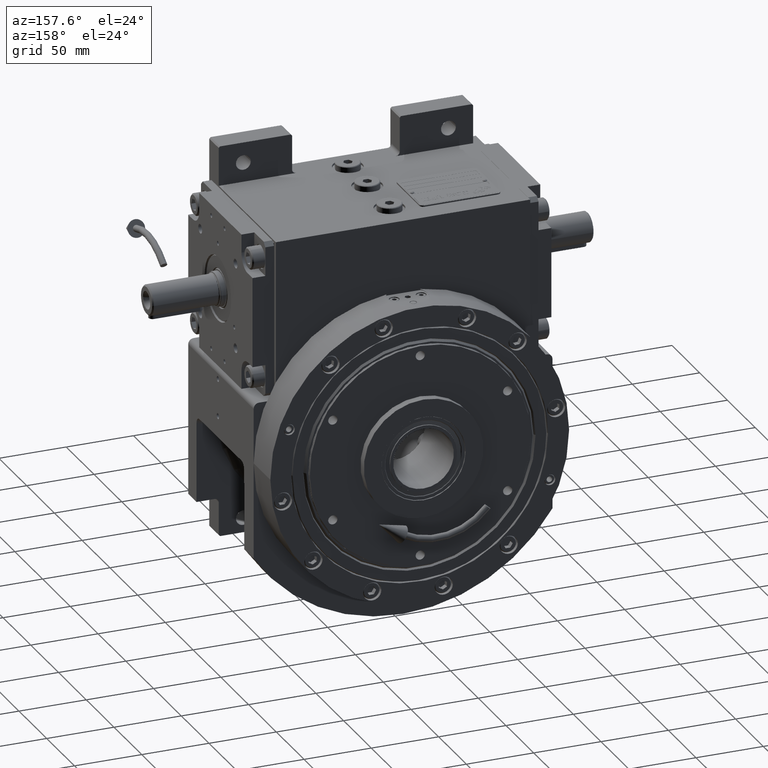
[diagram: clean part render]
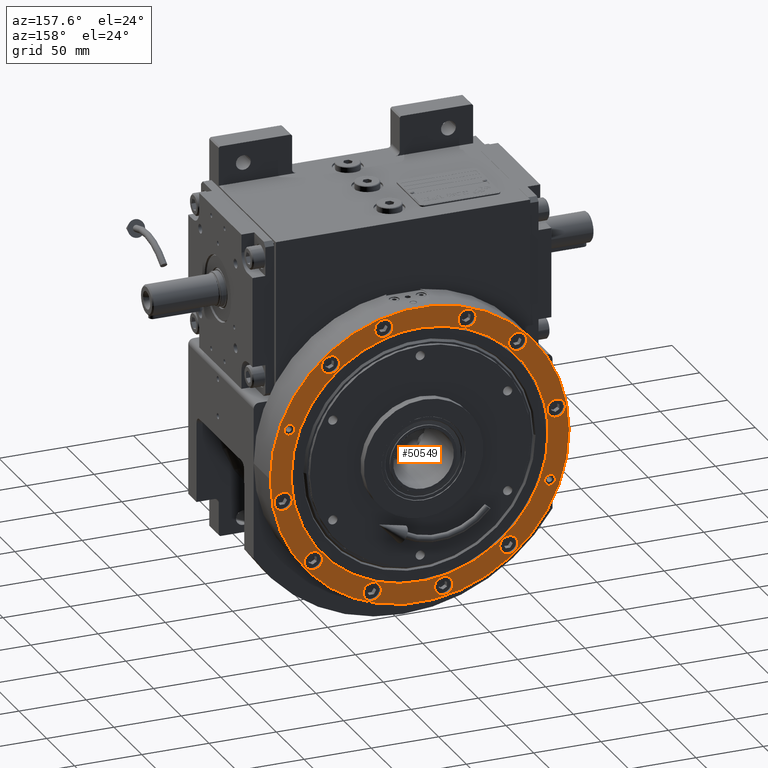
[diagram: same view with one face highlighted and labeled with its STEP entity id]
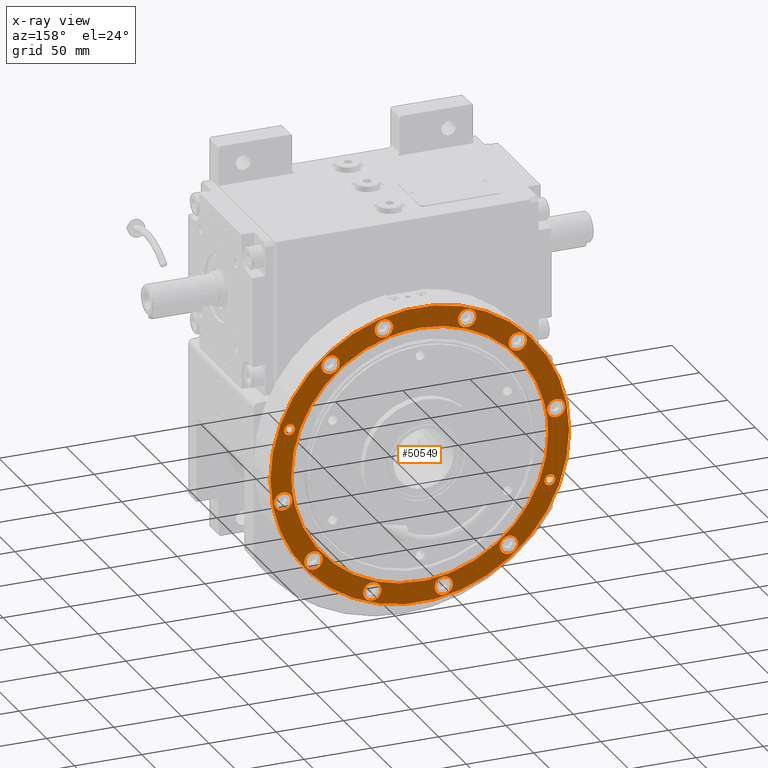
[diagram: x-ray of the same camera — body ghosted, the highlighted face saturated]
A machine part, auxiliary view. The second image highlights one B-rep face of the part: STEP entity #50549.
The next image is the same camera in x-ray: the body ghosted, the highlighted face saturated — about 0% of this face is hidden behind the body in this view.
In plain terms, the highlighted planar face has unit normal (0, 1, 0).
Its self-contained STEP definition (entity closure, byte-faithful):
#178 = EDGE_CURVE ( 'NONE', #9431, #59756, #22398, .T. ) ;
#201 = DIRECTION ( 'NONE',  ( 1.000000000000000000, 0.000000000000000000, 0.000000000000000000 ) ) ;
#262 = ORIENTED_EDGE ( 'NONE', *, *, #793, .F. ) ;
#317 = CARTESIAN_POINT ( 'NONE',  ( 95.36396765462740177, 1.146839460001253997E-07, 30.00000093867605244 ) ) ;
#321 = EDGE_LOOP ( 'NONE', ( #51018, #30616 ) ) ;
#424 = AXIS2_PLACEMENT_3D ( 'NONE', #23745, #13061, #19249 ) ;
#523 = CARTESIAN_POINT ( 'NONE',  ( 78.90257764125479412, 66.20712379771359224, 30.00000000000000000 ) ) ;
#676 = CARTESIAN_POINT ( 'NONE',  ( 95.36004226804972461, 6.278671310551059648, 30.00000000000000000 ) ) ;
#793 = EDGE_CURVE ( 'NONE', #51193, #62180, #22499, .T. ) ;
#809 = EDGE_CURVE ( 'NONE', #59756, #9431, #66163, .T. ) ;
#835 = CARTESIAN_POINT ( 'NONE',  ( 33.40836164555970100, -99.49036010777399497, 30.00000000000000000 ) ) ;
#974 = EDGE_LOOP ( 'NONE', ( #39127, #18151 ) ) ;
#1478 = CARTESIAN_POINT ( 'NONE',  ( 12.46351380911021245, -94.75307471979527918, 30.00000000000000711 ) ) ;
#1481 = CIRCLE ( 'NONE', #20075, 6.749999999999999112 ) ;
#2021 = DIRECTION ( 'NONE',  ( 1.000000000000000000, 0.000000000000000000, 0.000000000000000000 ) ) ;
#2455 = CARTESIAN_POINT ( 'NONE',  ( 101.4351985602574047, 17.88576229969384812, 30.00000000000000000 ) ) ;
#2712 = AXIS2_PLACEMENT_3D ( 'NONE', #18791, #48898, #2021 ) ;
#2722 = AXIS2_PLACEMENT_3D ( 'NONE', #26759, #16123, #57822 ) ;
#2850 = EDGE_CURVE ( 'NONE', #25640, #48352, #24155, .T. ) ;
#3007 = CARTESIAN_POINT ( 'NONE',  ( -111.0000000000000000, 4.531193156845210737E-15, 30.00000000000000000 ) ) ;
#3784 = EDGE_CURVE ( 'NONE', #5151, #26951, #48606, .T. ) ;
#4112 = CARTESIAN_POINT ( 'NONE',  ( -6.261284131796054808, 95.36384835916985026, 29.99999999999999645 ) ) ;
#4397 = EDGE_LOOP ( 'NONE', ( #21534, #49195 ) ) ;
#4659 = CARTESIAN_POINT ( 'NONE',  ( -95.36004226824213958, -6.278671002909074872, 29.99999999999999645 ) ) ;
#4897 = DIRECTION ( 'NONE',  ( 0.000000000000000000, 0.000000000000000000, 1.000000000000000000 ) ) ;
#5151 = VERTEX_POINT ( 'NONE', #17443 ) ;
#5294 = CARTESIAN_POINT ( 'NONE',  ( 0.000000000000000000, 0.000000000000000000, 30.00000000000000000 ) ) ;
#5339 = CARTESIAN_POINT ( 'NONE',  ( -63.00504900422143351, -71.86005655515261026, 29.99999999999999645 ) ) ;
#5593 = CARTESIAN_POINT ( 'NONE',  ( 93.82440576391282150, -17.06861220496205078, 29.99999999999999645 ) ) ;
#5671 = CARTESIAN_POINT ( 'NONE',  ( -30.70968628796335764, -90.50082709171405781, 30.00000000000000355 ) ) ;
#5727 = EDGE_LOOP ( 'NONE', ( #18558, #44884 ) ) ;
#5738 = DIRECTION ( 'NONE',  ( 0.000000000000000000, 0.000000000000000000, -1.000000000000000000 ) ) ;
#5764 = CARTESIAN_POINT ( 'NONE',  ( 94.74933634001871496, 12.47889566074964307, 30.00000000000000711 ) ) ;
#5905 = EDGE_CURVE ( 'NONE', #48352, #25640, #66081, .T. ) ;
#6164 = EDGE_CURVE ( 'NONE', #49685, #42422, #66185, .T. ) ;
#6266 = FACE_BOUND ( 'NONE', #53261, .T. ) ;
#6268 = CARTESIAN_POINT ( 'NONE',  ( 82.77081126671009770, -47.77538228772262840, 30.00000000000000355 ) ) ;
#6326 = CARTESIAN_POINT ( 'NONE',  ( -66.08199846221440055, -72.83199846221440055, 30.00000000000000000 ) ) ;
#6434 = CARTESIAN_POINT ( 'NONE',  ( 92.96503729129275939, 21.27949235716416965, 29.99999999999999289 ) ) ;
#7101 = EDGE_LOOP ( 'NONE', ( #67411, #16995 ) ) ;
#7261 = DIRECTION ( 'NONE',  ( 0.000000000000000000, 0.000000000000000000, 1.000000000000000000 ) ) ;
#7497 = EDGE_CURVE ( 'NONE', #65872, #11984, #17550, .T. ) ;
#7889 = VERTEX_POINT ( 'NONE', #50970 ) ;
#8026 = EDGE_CURVE ( 'NONE', #18952, #30155, #57531, .T. ) ;
#8191 = CIRCLE ( 'NONE', #43173, 6.749999999999999112 ) ;
#8649 = DIRECTION ( 'NONE',  ( 0.000000000000000000, 0.000000000000000000, 1.000000000000000000 ) ) ;
#8806 = AXIS2_PLACEMENT_3D ( 'NONE', #523, #58299, #12434 ) ;
#8883 = CARTESIAN_POINT ( 'NONE',  ( -63.00533367268138107, 71.85987798514420888, 30.00000000000000000 ) ) ;
#8895 = DIRECTION ( 'NONE',  ( 1.000000000000000000, 0.000000000000000000, 0.000000000000000000 ) ) ;
#9036 = DIRECTION ( 'NONE',  ( -1.000000000000000000, 0.000000000000000000, 0.000000000000000000 ) ) ;
#9388 = ORIENTED_EDGE ( 'NONE', *, *, #8026, .F. ) ;
#9431 = VERTEX_POINT ( 'NONE', #15263 ) ;
#9804 = EDGE_CURVE ( 'NONE', #54771, #11307, #1481, .T. ) ;
#10097 = DIRECTION ( 'NONE',  ( 1.000000000000000000, 0.000000000000000000, 0.000000000000000000 ) ) ;
#10399 = CARTESIAN_POINT ( 'NONE',  ( 94.03135700014991016, -15.91796824110771880, 30.00000000000000000 ) ) ;
#10486 = CARTESIAN_POINT ( 'NONE',  ( -4.229489444460266770E-10, -95.36392179383099688, 29.99999999999998579 ) ) ;
#10813 = CARTESIAN_POINT ( 'NONE',  ( -93.21483409806533871, -20.13354977035402271, 30.00000000000000000 ) ) ;
#10908 = CARTESIAN_POINT ( 'NONE',  ( 92.33404786841357748, 23.93848947927231663, 30.00000000000000711 ) ) ;
#10982 = CARTESIAN_POINT ( 'NONE',  ( -72.83199846221440055, -72.83199846221440055, 30.00000000000000000 ) ) ;
#11068 = CARTESIAN_POINT ( 'NONE',  ( 30.70942879387967750, -90.50100865208744949, 30.00000000000000711 ) ) ;
#11230 = CARTESIAN_POINT ( 'NONE',  ( 85.57274150929065115, 42.20782214628508200, 30.00000000000001066 ) ) ;
#11307 = VERTEX_POINT ( 'NONE', #835 ) ;
#11398 = CARTESIAN_POINT ( 'NONE',  ( 24.74579385898234207, -92.31004482326460447, 30.00000000000000000 ) ) ;
#11651 = DIRECTION ( 'NONE',  ( 1.000000000000000000, 0.000000000000000000, 0.000000000000000000 ) ) ;
#11984 = VERTEX_POINT ( 'NONE', #26302 ) ;
#12015 = VERTEX_POINT ( 'NONE', #31085 ) ;
#12043 = CARTESIAN_POINT ( 'NONE',  ( 78.90257764125479412, 66.20712379771359224, 30.00000000000000000 ) ) ;
#12063 = CARTESIAN_POINT ( 'NONE',  ( 58.18781398852603814, -75.81346993082416930, 30.00000000000000000 ) ) ;
#12248 = DIRECTION ( 'NONE',  ( -1.000000000000000000, 0.000000000000000000, 0.000000000000000000 ) ) ;
#12434 = DIRECTION ( 'NONE',  ( 1.000000000000000000, 0.000000000000000000, 0.000000000000000000 ) ) ;
#12685 = CARTESIAN_POINT ( 'NONE',  ( 26.65836164555969745, -99.49036010777399497, 30.00000000000000000 ) ) ;
#12903 = CARTESIAN_POINT ( 'NONE',  ( 72.15257764125480833, 66.20712379771359224, 30.00000000000000000 ) ) ;
#12924 = DIRECTION ( 'NONE',  ( -1.000000000000000000, 0.000000000000000000, 0.000000000000000000 ) ) ;
#13013 = DIRECTION ( 'NONE',  ( 0.000000000000000000, 0.000000000000000000, 1.000000000000000000 ) ) ;
#13041 = EDGE_LOOP ( 'NONE', ( #36618, #67493 ) ) ;
#13061 = DIRECTION ( 'NONE',  ( 0.000000000000000000, 0.000000000000000000, 1.000000000000000000 ) ) ;
#13401 = AXIS2_PLACEMENT_3D ( 'NONE', #22575, #64255, #12924 ) ;
#13484 = CARTESIAN_POINT ( 'NONE',  ( 35.22807476254389769, 96.78833994094861737, 30.00000000000000000 ) ) ;
#13644 = EDGE_LOOP ( 'NONE', ( #22018, #57577, #62369 ) ) ;
#13720 = CARTESIAN_POINT ( 'NONE',  ( -24.63576229969385167, 101.4351985602574047, 30.00000000000000000 ) ) ;
#13817 = CARTESIAN_POINT ( 'NONE',  ( -59.45712379771349987, 78.90257764125469464, 30.00000000000000000 ) ) ;
#14037 = CARTESIAN_POINT ( 'NONE',  ( -71.85999357129684029, 63.00467825743183425, 30.00000000000000711 ) ) ;
#14170 = DIRECTION ( 'NONE',  ( -1.000000000000000000, 0.000000000000000000, 0.000000000000000000 ) ) ;
#14302 = EDGE_CURVE ( 'NONE', #26951, #5151, #35715, .T. ) ;
#14370 = CARTESIAN_POINT ( 'NONE',  ( 58.18774278256792343, 75.81359446972774663, 30.00000000000000000 ) ) ;
#14548 = CARTESIAN_POINT ( 'NONE',  ( -108.1851985602573905, -17.88576229969384812, 30.00000000000000000 ) ) ;
#14668 = CARTESIAN_POINT ( 'NONE',  ( -96.78833994094861737, 35.22807476254389769, 30.00000000000000000 ) ) ;
#14877 = FACE_BOUND ( 'NONE', #47481, .T. ) ;
#14959 = CARTESIAN_POINT ( 'NONE',  ( -86.90708454479874945, -39.38558881133341316, 30.00000000000000000 ) ) ;
#15092 = CIRCLE ( 'NONE', #45718, 6.749999999999999112 ) ;
#15170 = DIRECTION ( 'NONE',  ( 1.000000000000000000, 0.000000000000000000, 0.000000000000000000 ) ) ;
#15263 = CARTESIAN_POINT ( 'NONE',  ( -28.47807476254395098, -96.78833994094861737, 30.00000000000000000 ) ) ;
#15286 = CARTESIAN_POINT ( 'NONE',  ( -85.57274245185685402, -42.20782022335594519, 30.00000000000000355 ) ) ;
#15351 = AXIS2_PLACEMENT_3D ( 'NONE', #10982, #48257, #11651 ) ;
#15383 = CARTESIAN_POINT ( 'NONE',  ( -94.03135713042799182, 15.91796746885852265, 30.00000000000000355 ) ) ;
#15537 = CARTESIAN_POINT ( 'NONE',  ( 94.46446488700054545, -13.22672580336032766, 30.00000000000000000 ) ) ;
#15595 = CARTESIAN_POINT ( 'NONE',  ( -17.88576229969384812, 101.4351985602574047, 30.00000000000000000 ) ) ;
#15621 = CARTESIAN_POINT ( 'NONE',  ( -75.81440830140243747, -58.18610632982992570, 30.00000000000000355 ) ) ;
#15709 = CIRCLE ( 'NONE', #424, 6.750000000000006217 ) ;
#15726 = CARTESIAN_POINT ( 'NONE',  ( 93.37678107592141430, 19.36817380080752926, 30.00000000000000000 ) ) ;
#15858 = AXIS2_PLACEMENT_3D ( 'NONE', #12043, #48677, #54468 ) ;
#15894 = CARTESIAN_POINT ( 'NONE',  ( 92.30979554816967436, -24.74573984201948207, 30.00000000000000355 ) ) ;
#15967 = CIRCLE ( 'NONE', #40041, 6.750000000000006217 ) ;
#15974 = CARTESIAN_POINT ( 'NONE',  ( -92.33404816371216839, -23.93848833026562062, 30.00000000000000355 ) ) ;
#16123 = DIRECTION ( 'NONE',  ( 0.000000000000000000, 0.000000000000000000, 1.000000000000000000 ) ) ;
#16300 = CARTESIAN_POINT ( 'NONE',  ( -89.30279205802959552, -33.60238237805035055, 29.99999999999999289 ) ) ;
#16556 = CARTESIAN_POINT ( 'NONE',  ( 90.50165223639055512, -30.70816640261620734, 30.00000000000000355 ) ) ;
#16726 = CARTESIAN_POINT ( 'NONE',  ( 90.87954623065817827, 29.19701717010804387, 30.00000000000000711 ) ) ;
#16995 = ORIENTED_EDGE ( 'NONE', *, *, #35329, .F. ) ;
#17269 = ORIENTED_EDGE ( 'NONE', *, *, #178, .F. ) ;
#17324 = B_SPLINE_CURVE_WITH_KNOTS ( 'NONE', 3,
 ( #20550, #24701, #62242, #30180, #15383, #35269, #36280, #57099, #24338, #46180, #50977, #45170, #60900, #14037, #8883, #55759, #51302, #67036, #29830, #50631, #45521, #4112, #35622, #66366, #61570, #19520, #56443, #61230, #14370, #58451, #57775, #53314, #42730, #37613, #11230, #51982, #36626, #16726, #10908, #6434, #63565, #15726, #21887, #5764, #676, #317 ),
 .UNSPECIFIED., .F., .F.,
 ( 4, 1, 1, 1, 2, 2, 2, 2, 2, 2, 2, 2, 2, 2, 2, 2, 2, 2, 2, 2, 1, 1, 1, 2, 2, 4 ),
 ( 0.000000000000000000, 0.03124999999999973632, 0.04687499999999959061, 0.05468749999999950734, 0.05859374999999949346, 0.06249999999999947264, 0.1249999999999995282, 0.1874999999999995282, 0.2499999999999995559, 0.3124999999999995559, 0.3749999999999996114, 0.4374999999999996114, 0.4999999999999996669, 0.5624999999999996669, 0.6249999999999996669, 0.6874999999999997780, 0.7499999999999997780, 0.8124999999999997780, 0.8437499999999997780, 0.8749999999999996669, 0.9062499999999996669, 0.9218749999999996669, 0.9296874999999996669, 0.9335937499999996669, 0.9374999999999996669, 1.000000000000000000 ),
 .UNSPECIFIED. ) ;
#17443 = CARTESIAN_POINT ( 'NONE',  ( -94.68519856025739045, -17.88576229969384812, 30.00000000000000000 ) ) ;
#17550 = CIRCLE ( 'NONE', #15351, 6.750000000000006217 ) ;
#18151 = ORIENTED_EDGE ( 'NONE', *, *, #14302, .F. ) ;
#18558 = ORIENTED_EDGE ( 'NONE', *, *, #20676, .F. ) ;
#18783 = EDGE_CURVE ( 'NONE', #12015, #20238, #52274, .T. ) ;
#18791 = CARTESIAN_POINT ( 'NONE',  ( -101.4351985602574047, -17.88576229969384812, 30.00000000000000000 ) ) ;
#18952 = VERTEX_POINT ( 'NONE', #40124 ) ;
#19249 = DIRECTION ( 'NONE',  ( -1.000000000000000000, 0.000000000000000000, 0.000000000000000000 ) ) ;
#19520 = CARTESIAN_POINT ( 'NONE',  ( 30.70968072591939446, 90.50082900647421980, 30.00000000000000000 ) ) ;
#19821 = DIRECTION ( 'NONE',  ( 0.000000000000000000, 0.000000000000000000, -1.000000000000000000 ) ) ;
#19903 = CIRCLE ( 'NONE', #22106, 6.750000000000002665 ) ;
#20075 = AXIS2_PLACEMENT_3D ( 'NONE', #37029, #37359, #57848 ) ;
#20127 = EDGE_LOOP ( 'NONE', ( #31849, #29992 ) ) ;
#20238 = VERTEX_POINT ( 'NONE', #24430 ) ;
#20318 = EDGE_LOOP ( 'NONE', ( #54537, #9388 ) ) ;
#20550 = CARTESIAN_POINT ( 'NONE',  ( -95.36396765462809810, -1.146839552493053995E-07, 30.00000093867580375 ) ) ;
#20676 = EDGE_CURVE ( 'NONE', #11307, #54771, #19903, .T. ) ;
#20701 = CARTESIAN_POINT ( 'NONE',  ( 95.36396765462740177, 1.146839460001253997E-07, 30.00000093867605244 ) ) ;
#21149 = CIRCLE ( 'NONE', #46286, 6.749999999999999112 ) ;
#21366 = CIRCLE ( 'NONE', #34352, 4.000000000000003553 ) ;
#21534 = ORIENTED_EDGE ( 'NONE', *, *, #31615, .F. ) ;
#21887 = CARTESIAN_POINT ( 'NONE',  ( 93.45575970705768043, 18.98328413746123289, 30.00000000000000000 ) ) ;
#22018 = ORIENTED_EDGE ( 'NONE', *, *, #24686, .T. ) ;
#22106 = AXIS2_PLACEMENT_3D ( 'NONE', #12685, #13013, #8895 ) ;
#22398 = CIRCLE ( 'NONE', #35591, 6.749999999999999112 ) ;
#22499 = CIRCLE ( 'NONE', #57413, 6.750000000000006217 ) ;
#22575 = CARTESIAN_POINT ( 'NONE',  ( 96.78833994094861737, -35.22807476254389769, 30.00000000000000000 ) ) ;
#23075 = CARTESIAN_POINT ( 'NONE',  ( 41.97807476254389769, 96.78833994094861737, 30.00000000000000000 ) ) ;
#23157 = DIRECTION ( 'NONE',  ( -1.000000000000000000, 0.000000000000000000, 0.000000000000000000 ) ) ;
#23179 = CIRCLE ( 'NONE', #64623, 6.750000000000006217 ) ;
#23745 = CARTESIAN_POINT ( 'NONE',  ( -66.20712379771349276, 78.90257764125469464, 30.00000000000000000 ) ) ;
#24155 = CIRCLE ( 'NONE', #8806, 6.750000000000006217 ) ;
#24338 = CARTESIAN_POINT ( 'NONE',  ( -92.30979584540520477, 24.74573865369705317, 29.99999999999999289 ) ) ;
#24430 = CARTESIAN_POINT ( 'NONE',  ( -4.229489444460266770E-10, -95.36392179383099688, 29.99999999999998579 ) ) ;
#24578 = CARTESIAN_POINT ( 'NONE',  ( 92.78833994094860316, -35.22807476254389769, 30.00000000000000000 ) ) ;
#24686 = EDGE_CURVE ( 'NONE', #7889, #12015, #17324, .T. ) ;
#24701 = CARTESIAN_POINT ( 'NONE',  ( -95.36203230917192286, 3.139160565545314086, 30.00000000000000355 ) ) ;
#25176 = FACE_BOUND ( 'NONE', #321, .T. ) ;
#25229 = DIRECTION ( 'NONE',  ( 0.000000000000000000, 0.000000000000000000, 1.000000000000000000 ) ) ;
#25483 = DIRECTION ( 'NONE',  ( 0.000000000000000000, 0.000000000000000000, 1.000000000000000000 ) ) ;
#25640 = VERTEX_POINT ( 'NONE', #28653 ) ;
#25663 = AXIS2_PLACEMENT_3D ( 'NONE', #60669, #8649, #55193 ) ;
#25679 = DIRECTION ( 'NONE',  ( -1.000000000000000000, 0.000000000000000000, 0.000000000000000000 ) ) ;
#25838 = VERTEX_POINT ( 'NONE', #26205 ) ;
#25954 = CARTESIAN_POINT ( 'NONE',  ( -93.45575989371496917, -18.98328321807429475, 30.00000000000000000 ) ) ;
#25980 = EDGE_LOOP ( 'NONE', ( #50573, #54864 ) ) ;
#26182 = DIRECTION ( 'NONE',  ( 1.000000000000000000, 0.000000000000000000, 0.000000000000000000 ) ) ;
#26196 = FACE_OUTER_BOUND ( 'NONE', #41855, .T. ) ;
#26205 = CARTESIAN_POINT ( 'NONE',  ( -72.95712379771350697, 78.90257764125469464, 30.00000000000000000 ) ) ;
#26302 = CARTESIAN_POINT ( 'NONE',  ( -79.58199846221440055, -72.83199846221440055, 30.00000000000000000 ) ) ;
#26336 = EDGE_CURVE ( 'NONE', #28615, #25838, #8191, .T. ) ;
#26613 = CARTESIAN_POINT ( 'NONE',  ( -94.74933639994532086, -12.47889505275104050, 30.00000000000000355 ) ) ;
#26759 = CARTESIAN_POINT ( 'NONE',  ( 0.000000000000000000, 0.000000000000000000, 30.00000000000000000 ) ) ;
#26877 = FACE_BOUND ( 'NONE', #20127, .T. ) ;
#26914 = DIRECTION ( 'NONE',  ( 0.000000000000000000, 0.000000000000000000, 1.000000000000000000 ) ) ;
#26951 = VERTEX_POINT ( 'NONE', #14548 ) ;
#27766 = VERTEX_POINT ( 'NONE', #13720 ) ;
#28100 = AXIS2_PLACEMENT_3D ( 'NONE', #41714, #51971, #23157 ) ;
#28615 = VERTEX_POINT ( 'NONE', #13817 ) ;
#28653 = CARTESIAN_POINT ( 'NONE',  ( 85.65257764125480833, 66.20712379771359224, 30.00000000000000000 ) ) ;
#28726 = DIRECTION ( 'NONE',  ( -1.000000000000000000, 0.000000000000000000, 0.000000000000000000 ) ) ;
#29697 = VERTEX_POINT ( 'NONE', #65969 ) ;
#29830 = CARTESIAN_POINT ( 'NONE',  ( -30.70943429188965013, 90.50100676390304955, 30.00000000000000000 ) ) ;
#29846 = CIRCLE ( 'NONE', #13401, 4.000000000000003553 ) ;
#29990 = CARTESIAN_POINT ( 'NONE',  ( -17.88576229969384812, 101.4351985602574047, 30.00000000000000000 ) ) ;
#29992 = ORIENTED_EDGE ( 'NONE', *, *, #6164, .T. ) ;
#30155 = VERTEX_POINT ( 'NONE', #61022 ) ;
#30180 = CARTESIAN_POINT ( 'NONE',  ( -94.46446497486198268, 13.22672516070912607, 30.00000000000000000 ) ) ;
#30616 = ORIENTED_EDGE ( 'NONE', *, *, #50421, .F. ) ;
#31085 = CARTESIAN_POINT ( 'NONE',  ( 95.36396765462740177, 1.146839460001253997E-07, 30.00000093867605244 ) ) ;
#31179 = EDGE_CURVE ( 'NONE', #67027, #27766, #15092, .T. ) ;
#31212 = CARTESIAN_POINT ( 'NONE',  ( 111.0000000000000000, 0.000000000000000000, 30.00000000000000000 ) ) ;
#31312 = DIRECTION ( 'NONE',  ( 0.000000000000000000, 0.000000000000000000, 1.000000000000000000 ) ) ;
#31403 = EDGE_CURVE ( 'NONE', #47214, #33543, #52270, .T. ) ;
#31615 = EDGE_CURVE ( 'NONE', #33543, #47214, #58816, .T. ) ;
#31730 = CARTESIAN_POINT ( 'NONE',  ( -93.37678127073233725, -19.36817286081602418, 30.00000000000000000 ) ) ;
#31849 = ORIENTED_EDGE ( 'NONE', *, *, #63909, .T. ) ;
#32014 = AXIS2_PLACEMENT_3D ( 'NONE', #5294, #26914, #47383 ) ;
#32948 = DIRECTION ( 'NONE',  ( 1.000000000000000000, 0.000000000000000000, 0.000000000000000000 ) ) ;
#32973 = CARTESIAN_POINT ( 'NONE',  ( -4.229489444460266770E-10, -95.36392179383099688, 29.99999999999998579 ) ) ;
#33543 = VERTEX_POINT ( 'NONE', #23075 ) ;
#33828 = CARTESIAN_POINT ( 'NONE',  ( -101.4351985602574047, -17.88576229969384812, 30.00000000000000000 ) ) ;
#33914 = CARTESIAN_POINT ( 'NONE',  ( 19.90836164555969745, -99.49036010777399497, 30.00000000000000000 ) ) ;
#34352 = AXIS2_PLACEMENT_3D ( 'NONE', #14668, #19821, #56052 ) ;
#34867 = CARTESIAN_POINT ( 'NONE',  ( -66.20712379771349276, 78.90257764125469464, 30.00000000000000000 ) ) ;
#35199 = DIRECTION ( 'NONE',  ( 1.000000000000000000, 0.000000000000000000, 0.000000000000000000 ) ) ;
#35269 = CARTESIAN_POINT ( 'NONE',  ( -93.82440591446295741, 17.06861137740426670, 30.00000000000000000 ) ) ;
#35329 = EDGE_CURVE ( 'NONE', #11984, #65872, #23179, .T. ) ;
#35426 = FACE_BOUND ( 'NONE', #7101, .T. ) ;
#35477 = CARTESIAN_POINT ( 'NONE',  ( -35.22807476254394743, -96.78833994094861737, 30.00000000000000000 ) ) ;
#35591 = AXIS2_PLACEMENT_3D ( 'NONE', #35477, #25229, #10097 ) ;
#35622 = CARTESIAN_POINT ( 'NONE',  ( 6.261269386993523867, 95.36391587527333513, 30.00000000000000355 ) ) ;
#35715 = CIRCLE ( 'NONE', #62966, 6.750000000000006217 ) ;
#35856 = CARTESIAN_POINT ( 'NONE',  ( -92.96503752574049884, -21.27949132939219368, 30.00000000000000000 ) ) ;
#35922 = AXIS2_PLACEMENT_3D ( 'NONE', #57911, #31312, #26182 ) ;
#35998 = DIRECTION ( 'NONE',  ( 1.000000000000000000, 0.000000000000000000, 0.000000000000000000 ) ) ;
#36175 = EDGE_CURVE ( 'NONE', #63628, #59761, #65852, .T. ) ;
#36252 = CARTESIAN_POINT ( 'NONE',  ( -96.78833994094861737, 35.22807476254389769, 30.00000000000000000 ) ) ;
#36280 = CARTESIAN_POINT ( 'NONE',  ( -93.68169764418615841, 17.83509717152595542, 30.00000000000000355 ) ) ;
#36618 = ORIENTED_EDGE ( 'NONE', *, *, #2850, .F. ) ;
#36626 = CARTESIAN_POINT ( 'NONE',  ( 89.30279146915873412, 33.60238395645772869, 30.00000000000000355 ) ) ;
#36708 = AXIS2_PLACEMENT_3D ( 'NONE', #52105, #4897, #57579 ) ;
#36778 = FACE_BOUND ( 'NONE', #20318, .T. ) ;
#36865 = CARTESIAN_POINT ( 'NONE',  ( -42.27891310516112355, -85.70857936102159158, 30.00000000000000711 ) ) ;
#37029 = CARTESIAN_POINT ( 'NONE',  ( 26.65836164555969745, -99.49036010777399497, 30.00000000000000000 ) ) ;
#37299 = CARTESIAN_POINT ( 'NONE',  ( -72.83199846221440055, -72.83199846221440055, 30.00000000000000000 ) ) ;
#37359 = DIRECTION ( 'NONE',  ( 0.000000000000000000, 0.000000000000000000, 1.000000000000000000 ) ) ;
#37428 = CARTESIAN_POINT ( 'NONE',  ( -92.78833994094860316, 35.22807476254389769, 30.00000000000000000 ) ) ;
#37445 = CARTESIAN_POINT ( 'NONE',  ( 42.27917621702663098, -85.70839357087398014, 30.00000000000000000 ) ) ;
#37613 = CARTESIAN_POINT ( 'NONE',  ( 82.63521789501693604, 47.70355364001917309, 30.00000000000000000 ) ) ;
#38440 = CARTESIAN_POINT ( 'NONE',  ( 85.70824843684401628, -42.27978968348480038, 30.00000000000000711 ) ) ;
#38728 = AXIS2_PLACEMENT_3D ( 'NONE', #46583, #44316, #35998 ) ;
#39006 = VERTEX_POINT ( 'NONE', #24578 ) ;
#39127 = ORIENTED_EDGE ( 'NONE', *, *, #3784, .F. ) ;
#39253 = EDGE_CURVE ( 'NONE', #25838, #28615, #15709, .T. ) ;
#39957 = CARTESIAN_POINT ( 'NONE',  ( -41.97807476254394743, -96.78833994094861737, 30.00000000000000000 ) ) ;
#40041 = AXIS2_PLACEMENT_3D ( 'NONE', #2455, #7261, #32948 ) ;
#40124 = CARTESIAN_POINT ( 'NONE',  ( 94.68519856025739045, 17.88576229969384812, 30.00000000000000000 ) ) ;
#40514 = DIRECTION ( 'NONE',  ( 0.000000000000000000, 0.000000000000000000, 1.000000000000000000 ) ) ;
#40531 = FACE_BOUND ( 'NONE', #13644, .T. ) ;
#40839 = CARTESIAN_POINT ( 'NONE',  ( 66.20712379771359224, -78.90257764125479412, 30.00000000000000000 ) ) ;
#41121 = ORIENTED_EDGE ( 'NONE', *, *, #64787, .T. ) ;
#41302 = CARTESIAN_POINT ( 'NONE',  ( -6.261276405276430701, -95.36391539573197917, 30.00000000000000355 ) ) ;
#41628 = CARTESIAN_POINT ( 'NONE',  ( -47.77533377604817844, -82.77059198701886089, 30.00000000000000355 ) ) ;
#41714 = CARTESIAN_POINT ( 'NONE',  ( 101.4351985602574047, 17.88576229969384812, 30.00000000000000000 ) ) ;
#41806 = ORIENTED_EDGE ( 'NONE', *, *, #36175, .T. ) ;
#41855 = EDGE_LOOP ( 'NONE', ( #55878, #41806 ) ) ;
#41878 = CARTESIAN_POINT ( 'NONE',  ( 95.36203230907722173, -3.139160719051879767, 30.00000000000000355 ) ) ;
#42177 = B_SPLINE_CURVE_WITH_KNOTS ( 'NONE', 3,
 ( #10486, #41302, #62474, #51531, #5671, #36865, #41628, #61829, #5339, #46764, #15621, #62147, #47776, #15286, #14959, #16300, #57680, #15974, #35856, #10813, #31730, #25954, #26613, #4659, #67616 ),
 .UNSPECIFIED., .F., .F.,
 ( 4, 2, 2, 2, 2, 2, 2, 2, 1, 1, 1, 2, 2, 4 ),
 ( 0.5000000245318184655, 0.5625000214653411712, 0.6250000183988639879, 0.6875000153323866936, 0.7500000122659093993, 0.8125000091994321050, 0.8437500076661934578, 0.8750000061329546996, 0.9062500045997161635, 0.9218750038330967289, 0.9296875034497871226, 0.9335937532581322085, 0.9375000030664774053, 1.000000000000000000 ),
 .UNSPECIFIED. ) ;
#42366 = CARTESIAN_POINT ( 'NONE',  ( -11.13576229969381970, 101.4351985602574047, 30.00000000000000000 ) ) ;
#42422 = VERTEX_POINT ( 'NONE', #37428 ) ;
#42730 = CARTESIAN_POINT ( 'NONE',  ( 81.03134691207912965, 50.37871826842354750, 30.00000000000000000 ) ) ;
#43173 = AXIS2_PLACEMENT_3D ( 'NONE', #34867, #64670, #35199 ) ;
#43570 = CARTESIAN_POINT ( 'NONE',  ( 75.81391712312019138, -58.18695144119686802, 30.00000000000000711 ) ) ;
#44316 = DIRECTION ( 'NONE',  ( 0.000000000000000000, 0.000000000000000000, -1.000000000000000000 ) ) ;
#44884 = ORIENTED_EDGE ( 'NONE', *, *, #9804, .F. ) ;
#45170 = CARTESIAN_POINT ( 'NONE',  ( -82.77081249183450495, 47.77538013039470144, 30.00000000000000711 ) ) ;
#45521 = CARTESIAN_POINT ( 'NONE',  ( -12.46352048017085501, 94.75307382072006135, 30.00000000000000355 ) ) ;
#45718 = AXIS2_PLACEMENT_3D ( 'NONE', #15595, #63454, #201 ) ;
#45996 = FACE_BOUND ( 'NONE', #5727, .T. ) ;
#46180 = CARTESIAN_POINT ( 'NONE',  ( -90.50165271740971207, 30.70816492772434003, 30.00000000000000000 ) ) ;
#46286 = AXIS2_PLACEMENT_3D ( 'NONE', #29990, #51785, #9036 ) ;
#46583 = CARTESIAN_POINT ( 'NONE',  ( 96.78833994094861737, -35.22807476254389769, 30.00000000000000000 ) ) ;
#46764 = CARTESIAN_POINT ( 'NONE',  ( -71.86025690672755672, -63.00450664072521079, 30.00000000000000711 ) ) ;
#47012 = CARTESIAN_POINT ( 'NONE',  ( 93.60825815810538586, -18.21660170345569085, 29.99999999999999289 ) ) ;
#47144 = EDGE_LOOP ( 'NONE', ( #17269, #47853 ) ) ;
#47214 = VERTEX_POINT ( 'NONE', #53863 ) ;
#47340 = CARTESIAN_POINT ( 'NONE',  ( 0.000000000000000000, 0.000000000000000000, 30.00000000000000000 ) ) ;
#47383 = DIRECTION ( 'NONE',  ( 1.000000000000000000, 0.000000000000000000, 0.000000000000000000 ) ) ;
#47481 = EDGE_LOOP ( 'NONE', ( #262, #56634 ) ) ;
#47776 = CARTESIAN_POINT ( 'NONE',  ( -82.63521911428769329, -47.70355151878913347, 30.00000000000000000 ) ) ;
#47853 = ORIENTED_EDGE ( 'NONE', *, *, #809, .F. ) ;
#47881 = ORIENTED_EDGE ( 'NONE', *, *, #61085, .T. ) ;
#48257 = DIRECTION ( 'NONE',  ( 0.000000000000000000, 0.000000000000000000, 1.000000000000000000 ) ) ;
#48342 = DIRECTION ( 'NONE',  ( 0.000000000000000000, 0.000000000000000000, 1.000000000000000000 ) ) ;
#48352 = VERTEX_POINT ( 'NONE', #12903 ) ;
#48513 = DIRECTION ( 'NONE',  ( 0.000000000000000000, 0.000000000000000000, 1.000000000000000000 ) ) ;
#48606 = CIRCLE ( 'NONE', #2712, 6.750000000000006217 ) ;
#48677 = DIRECTION ( 'NONE',  ( 0.000000000000000000, 0.000000000000000000, 1.000000000000000000 ) ) ;
#48898 = DIRECTION ( 'NONE',  ( 0.000000000000000000, 0.000000000000000000, 1.000000000000000000 ) ) ;
#49195 = ORIENTED_EDGE ( 'NONE', *, *, #31403, .F. ) ;
#49685 = VERTEX_POINT ( 'NONE', #60130 ) ;
#50421 = EDGE_CURVE ( 'NONE', #27766, #67027, #21149, .T. ) ;
#50549 = ADVANCED_FACE ( 'NONE', ( #40531, #14877, #45996, #61385, #35426, #51124, #56264, #25176, #56591, #51446, #36778, #26877, #6266, #26196 ), #63062, .T. ) ;
#50573 = ORIENTED_EDGE ( 'NONE', *, *, #26336, .F. ) ;
#50631 = CARTESIAN_POINT ( 'NONE',  ( -24.74579984280093115, 92.31004320519716089, 30.00000000000000355 ) ) ;
#50970 = CARTESIAN_POINT ( 'NONE',  ( -95.36396765462809810, -1.146839552493053995E-07, 30.00000093867580375 ) ) ;
#50977 = CARTESIAN_POINT ( 'NONE',  ( -85.70824936691572304, 42.27978775190128147, 30.00000000000000000 ) ) ;
#51006 = CARTESIAN_POINT ( 'NONE',  ( 59.45712379771349987, -78.90257764125479412, 30.00000000000000000 ) ) ;
#51018 = ORIENTED_EDGE ( 'NONE', *, *, #31179, .F. ) ;
#51124 = FACE_BOUND ( 'NONE', #974, .T. ) ;
#51193 = VERTEX_POINT ( 'NONE', #67298 ) ;
#51302 = CARTESIAN_POINT ( 'NONE',  ( -47.77528118985262040, 82.77070784699705541, 30.00000000000000355 ) ) ;
#51446 = FACE_BOUND ( 'NONE', #13041, .T. ) ;
#51531 = CARTESIAN_POINT ( 'NONE',  ( -24.74554162888736641, -92.31016393001900155, 30.00000000000000355 ) ) ;
#51785 = DIRECTION ( 'NONE',  ( 0.000000000000000000, 0.000000000000000000, 1.000000000000000000 ) ) ;
#51971 = DIRECTION ( 'NONE',  ( 0.000000000000000000, 0.000000000000000000, 1.000000000000000000 ) ) ;
#51982 = CARTESIAN_POINT ( 'NONE',  ( 86.90708372316407804, 39.38559063786794923, 30.00000000000000711 ) ) ;
#52105 = CARTESIAN_POINT ( 'NONE',  ( -35.22807476254394743, -96.78833994094861737, 30.00000000000000000 ) ) ;
#52130 = CARTESIAN_POINT ( 'NONE',  ( 93.68169747965613681, -17.83509803590425236, 30.00000000000000000 ) ) ;
#52270 = CIRCLE ( 'NONE', #61026, 6.749999999999999112 ) ;
#52274 = B_SPLINE_CURVE_WITH_KNOTS ( 'NONE', 3,
 ( #20701, #41878, #62396, #15537, #10399, #5593, #52130, #47012, #15894, #16556, #38440, #6268, #43570, #57930, #64084, #12063, #58260, #37445, #11068, #11398, #1478, #53145, #32973 ),
 .UNSPECIFIED., .F., .F.,
 ( 4, 1, 1, 1, 2, 2, 2, 2, 2, 2, 2, 2, 4 ),
 ( 0.000000000000000000, 0.03125000153323884838, 0.04687500229985828298, 0.05468750268316800028, 0.05859375287482285199, 0.06250000306647769677, 0.1250000061329549494, 0.1875000091994322160, 0.2500000122659094548, 0.3125000153323866936, 0.3750000183988639879, 0.4375000214653412267, 0.5000000245318184655 ),
 .UNSPECIFIED. ) ;
#52787 = DIRECTION ( 'NONE',  ( 1.000000000000000000, 0.000000000000000000, 0.000000000000000000 ) ) ;
#53145 = CARTESIAN_POINT ( 'NONE',  ( 6.261277018832593022, -95.36384883878687901, 30.00000000000000000 ) ) ;
#53229 = EDGE_CURVE ( 'NONE', #62180, #51193, #56175, .T. ) ;
#53261 = EDGE_LOOP ( 'NONE', ( #41121, #47881 ) ) ;
#53314 = CARTESIAN_POINT ( 'NONE',  ( 75.81440643586275030, 58.18610879824851168, 30.00000000000000355 ) ) ;
#53863 = CARTESIAN_POINT ( 'NONE',  ( 28.47807476254390124, 96.78833994094861737, 30.00000000000000000 ) ) ;
#54468 = DIRECTION ( 'NONE',  ( -1.000000000000000000, 0.000000000000000000, 0.000000000000000000 ) ) ;
#54537 = ORIENTED_EDGE ( 'NONE', *, *, #66743, .F. ) ;
#54771 = VERTEX_POINT ( 'NONE', #33914 ) ;
#54864 = ORIENTED_EDGE ( 'NONE', *, *, #39253, .F. ) ;
#55193 = DIRECTION ( 'NONE',  ( -1.000000000000000000, 0.000000000000000000, 0.000000000000000000 ) ) ;
#55759 = CARTESIAN_POINT ( 'NONE',  ( -58.18781742204076579, 75.81346727614813119, 30.00000000000000355 ) ) ;
#55878 = ORIENTED_EDGE ( 'NONE', *, *, #64916, .T. ) ;
#56052 = DIRECTION ( 'NONE',  ( 1.000000000000000000, 0.000000000000000000, 0.000000000000000000 ) ) ;
#56175 = CIRCLE ( 'NONE', #25663, 6.749999999999999112 ) ;
#56264 = FACE_BOUND ( 'NONE', #25980, .T. ) ;
#56443 = CARTESIAN_POINT ( 'NONE',  ( 42.27890844989412500, 85.70858167851324083, 30.00000000000000355 ) ) ;
#56591 = FACE_BOUND ( 'NONE', #4397, .T. ) ;
#56634 = ORIENTED_EDGE ( 'NONE', *, *, #53229, .F. ) ;
#57099 = CARTESIAN_POINT ( 'NONE',  ( -93.60825833065003110, 18.21660081669610776, 29.99999999999998934 ) ) ;
#57253 = CIRCLE ( 'NONE', #38728, 4.000000000000003553 ) ;
#57413 = AXIS2_PLACEMENT_3D ( 'NONE', #40839, #25483, #15170 ) ;
#57531 = CIRCLE ( 'NONE', #28100, 6.750000000000006217 ) ;
#57577 = ORIENTED_EDGE ( 'NONE', *, *, #18783, .T. ) ;
#57579 = DIRECTION ( 'NONE',  ( -1.000000000000000000, 0.000000000000000000, 0.000000000000000000 ) ) ;
#57680 = CARTESIAN_POINT ( 'NONE',  ( -90.87954666657383029, -29.19701578448387025, 29.99999999999999645 ) ) ;
#57775 = CARTESIAN_POINT ( 'NONE',  ( 71.86025470436058527, 63.00450918191229022, 30.00000000000000000 ) ) ;
#57822 = DIRECTION ( 'NONE',  ( -1.000000000000000000, 0.000000000000000000, 0.000000000000000000 ) ) ;
#57848 = DIRECTION ( 'NONE',  ( -1.000000000000000000, 0.000000000000000000, 0.000000000000000000 ) ) ;
#57911 = CARTESIAN_POINT ( 'NONE',  ( 35.22807476254389769, 96.78833994094861737, 30.00000000000000000 ) ) ;
#57930 = CARTESIAN_POINT ( 'NONE',  ( 71.85999133533280769, -63.00468083268515329, 30.00000000000000355 ) ) ;
#58260 = CARTESIAN_POINT ( 'NONE',  ( 47.77527696021381587, -82.77071031253373690, 30.00000000000000711 ) ) ;
#58299 = DIRECTION ( 'NONE',  ( 0.000000000000000000, 0.000000000000000000, 1.000000000000000000 ) ) ;
#58423 = CIRCLE ( 'NONE', #2722, 111.0000000000000000 ) ;
#58451 = CARTESIAN_POINT ( 'NONE',  ( 63.00504599296380093, 71.86005922779146715, 30.00000000000000000 ) ) ;
#58794 = DIRECTION ( 'NONE',  ( 0.000000000000000000, 0.000000000000000000, 1.000000000000000000 ) ) ;
#58816 = CIRCLE ( 'NONE', #35922, 6.749999999999999112 ) ;
#59756 = VERTEX_POINT ( 'NONE', #39957 ) ;
#59761 = VERTEX_POINT ( 'NONE', #3007 ) ;
#59934 = EDGE_CURVE ( 'NONE', #20238, #7889, #42177, .T. ) ;
#60130 = CARTESIAN_POINT ( 'NONE',  ( -100.7883399409486032, 35.22807476254389769, 30.00000000000000000 ) ) ;
#60484 = AXIS2_PLACEMENT_3D ( 'NONE', #47340, #48342, #52787 ) ;
#60669 = CARTESIAN_POINT ( 'NONE',  ( 66.20712379771359224, -78.90257764125479412, 30.00000000000000000 ) ) ;
#60900 = CARTESIAN_POINT ( 'NONE',  ( -75.81391896997033086, 58.18694900105990797, 30.00000000000001776 ) ) ;
#61022 = CARTESIAN_POINT ( 'NONE',  ( 108.1851985602573905, 17.88576229969384812, 30.00000000000000000 ) ) ;
#61026 = AXIS2_PLACEMENT_3D ( 'NONE', #13484, #40514, #14170 ) ;
#61085 = EDGE_CURVE ( 'NONE', #39006, #29697, #29846, .T. ) ;
#61230 = CARTESIAN_POINT ( 'NONE',  ( 47.77532949789286931, 82.77059448476107661, 30.00000000000000000 ) ) ;
#61385 = FACE_BOUND ( 'NONE', #47144, .T. ) ;
#61570 = CARTESIAN_POINT ( 'NONE',  ( 24.74553572605270091, 92.31016553175284400, 30.00000000000000355 ) ) ;
#61829 = CARTESIAN_POINT ( 'NONE',  ( -58.18774616747545991, -75.81359184743369894, 29.99999999999999289 ) ) ;
#62147 = CARTESIAN_POINT ( 'NONE',  ( -81.03134828296784065, -50.37871605510206763, 30.00000000000000000 ) ) ;
#62180 = VERTEX_POINT ( 'NONE', #51006 ) ;
#62242 = CARTESIAN_POINT ( 'NONE',  ( -95.13156735912539830, 7.818614458239847131, 30.00000000000001066 ) ) ;
#62369 = ORIENTED_EDGE ( 'NONE', *, *, #59934, .T. ) ;
#62396 = CARTESIAN_POINT ( 'NONE',  ( 95.13156733655866049, -7.818614839516469850, 30.00000000000000355 ) ) ;
#62474 = CARTESIAN_POINT ( 'NONE',  ( -12.46376276013532269, -94.75295510460688320, 29.99999999999999645 ) ) ;
#62966 = AXIS2_PLACEMENT_3D ( 'NONE', #33828, #48513, #28726 ) ;
#63062 = PLANE ( 'NONE',  #60484 ) ;
#63454 = DIRECTION ( 'NONE',  ( 0.000000000000000000, 0.000000000000000000, 1.000000000000000000 ) ) ;
#63565 = CARTESIAN_POINT ( 'NONE',  ( 93.21483388766992562, 20.13355074554134205, 30.00000000000000000 ) ) ;
#63628 = VERTEX_POINT ( 'NONE', #31212 ) ;
#63909 = EDGE_CURVE ( 'NONE', #42422, #49685, #21366, .T. ) ;
#63980 = AXIS2_PLACEMENT_3D ( 'NONE', #36252, #5738, #25679 ) ;
#64084 = CARTESIAN_POINT ( 'NONE',  ( 63.00533069534351682, -71.85988062351042061, 30.00000000000000711 ) ) ;
#64255 = DIRECTION ( 'NONE',  ( 0.000000000000000000, 0.000000000000000000, -1.000000000000000000 ) ) ;
#64623 = AXIS2_PLACEMENT_3D ( 'NONE', #37299, #58794, #12248 ) ;
#64670 = DIRECTION ( 'NONE',  ( 0.000000000000000000, 0.000000000000000000, 1.000000000000000000 ) ) ;
#64787 = EDGE_CURVE ( 'NONE', #29697, #39006, #57253, .T. ) ;
#64916 = EDGE_CURVE ( 'NONE', #59761, #63628, #58423, .T. ) ;
#65852 = CIRCLE ( 'NONE', #32014, 111.0000000000000000 ) ;
#65872 = VERTEX_POINT ( 'NONE', #6326 ) ;
#65969 = CARTESIAN_POINT ( 'NONE',  ( 100.7883399409486032, -35.22807476254389769, 30.00000000000000000 ) ) ;
#66081 = CIRCLE ( 'NONE', #15858, 6.750000000000006217 ) ;
#66163 = CIRCLE ( 'NONE', #36708, 6.749999999999999112 ) ;
#66185 = CIRCLE ( 'NONE', #63980, 4.000000000000003553 ) ;
#66366 = CARTESIAN_POINT ( 'NONE',  ( 12.46375600860570287, 94.75295601976939963, 30.00000000000000000 ) ) ;
#66743 = EDGE_CURVE ( 'NONE', #30155, #18952, #15967, .T. ) ;
#67027 = VERTEX_POINT ( 'NONE', #42366 ) ;
#67036 = CARTESIAN_POINT ( 'NONE',  ( -42.27918093678602673, 85.70839122648196451, 29.99999999999999645 ) ) ;
#67298 = CARTESIAN_POINT ( 'NONE',  ( 72.95712379771360645, -78.90257764125479412, 30.00000000000000000 ) ) ;
#67411 = ORIENTED_EDGE ( 'NONE', *, *, #7497, .F. ) ;
#67493 = ORIENTED_EDGE ( 'NONE', *, *, #5905, .F. ) ;
#67616 = CARTESIAN_POINT ( 'NONE',  ( -95.36396765462809810, -1.146839552493053995E-07, 30.00000093867580375 ) ) ;